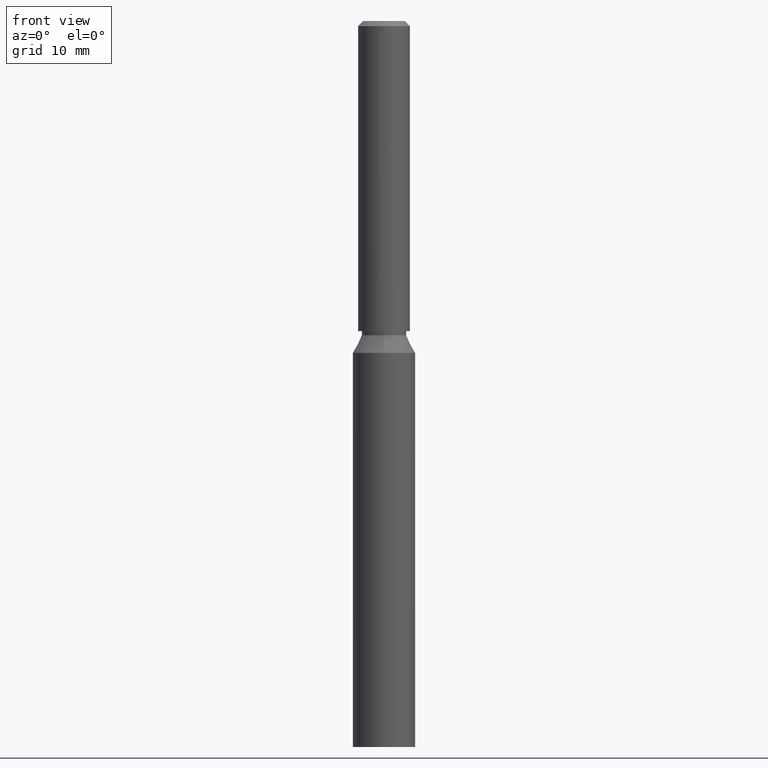
[diagram: clean part render]
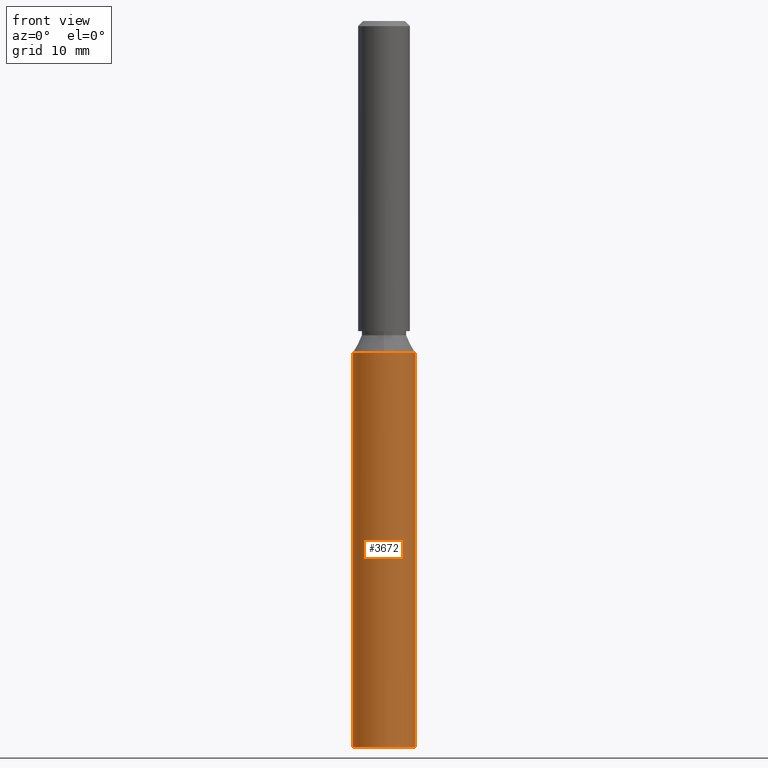
[diagram: same view with one face highlighted and labeled with its STEP entity id]
A machine part, front view. The second image highlights one B-rep face of the part: STEP entity #3672.
In plain terms, the highlighted cylindrical surface (edge-blend (fillet) strip) has radius 3 mm, axis along (-0, -0, -1).
Its self-contained STEP definition (entity closure, byte-faithful):
#433 = EDGE_CURVE ( 'NONE', #5774, #11327, #2563, .T. ) ;
#558 = DIRECTION ( 'NONE',  ( -0.0000000000000000000, -0.0000000000000000000, -1.000000000000000000 ) ) ;
#1216 = EDGE_CURVE ( 'NONE', #10972, #3734, #9667, .T. ) ;
#1454 = ORIENTED_EDGE ( 'NONE', *, *, #2805, .T. ) ;
#1540 = ORIENTED_EDGE ( 'NONE', *, *, #12414, .T. ) ;
#1727 = ORIENTED_EDGE ( 'NONE', *, *, #8704, .T. ) ;
#1941 = AXIS2_PLACEMENT_3D ( 'NONE', #9509, #2082, #6472 ) ;
#2082 = DIRECTION ( 'NONE',  ( -0.0000000000000000000, 1.967742040464204400E-018, -1.000000000000000000 ) ) ;
#2505 = DIRECTION ( 'NONE',  ( -0.0000000000000000000, 1.967742040464204400E-018, -1.000000000000000000 ) ) ;
#2563 = CIRCLE ( 'NONE', #1941, 3.000000000000005800 ) ;
#2805 = EDGE_CURVE ( 'NONE', #11327, #4088, #10504, .T. ) ;
#2946 = CIRCLE ( 'NONE', #8358, 3.000000000000000400 ) ;
#3513 = CIRCLE ( 'NONE', #7159, 3.000000000000005800 ) ;
#3672 = ADVANCED_FACE ( 'NONE', ( #6755 ), #13243, .T. ) ;
#3734 = VERTEX_POINT ( 'NONE', #11551 ) ;
#3858 = ORIENTED_EDGE ( 'NONE', *, *, #1216, .F. ) ;
#3957 = DIRECTION ( 'NONE',  ( -0.0000000000000000000, -0.0000000000000000000, -1.000000000000000000 ) ) ;
#4052 = DIRECTION ( 'NONE',  ( -1.000000000000000000, 0.0000000000000000000, 0.0000000000000000000 ) ) ;
#4088 = VERTEX_POINT ( 'NONE', #13517 ) ;
#4109 = CARTESIAN_POINT ( 'NONE',  ( 3.673940397442066300E-016, -3.000000000000005800, 38.00000000000000000 ) ) ;
#4763 = AXIS2_PLACEMENT_3D ( 'NONE', #7313, #3957, #4052 ) ;
#5379 = DIRECTION ( 'NONE',  ( 1.000000000000000000, 0.0000000000000000000, 0.0000000000000000000 ) ) ;
#5692 = CARTESIAN_POINT ( 'NONE',  ( -3.000000000000005800, 1.324076836766224600E-031, 38.00000000000000000 ) ) ;
#5774 = VERTEX_POINT ( 'NONE', #4109 ) ;
#6265 = CARTESIAN_POINT ( 'NONE',  ( 3.000000000000005800, 3.673940397442067800E-016, 38.00000000000000000 ) ) ;
#6472 = DIRECTION ( 'NONE',  ( 0.0000000000000000000, 1.000000000000000000, 0.0000000000000000000 ) ) ;
#6755 = FACE_OUTER_BOUND ( 'NONE', #8677, .T. ) ;
#7101 = CARTESIAN_POINT ( 'NONE',  ( 3.000000000000000400, 3.673940397442060400E-016, 40.00000000000000000 ) ) ;
#7130 = VECTOR ( 'NONE', #558, 1000.000000000000000 ) ;
#7159 = AXIS2_PLACEMENT_3D ( 'NONE', #7943, #2505, #8942 ) ;
#7165 = CARTESIAN_POINT ( 'NONE',  ( -3.000000000000000400, 0.0000000000000000000, 40.00000000000000000 ) ) ;
#7313 = CARTESIAN_POINT ( 'NONE',  ( 0.0000000000000000000, 0.0000000000000000000, 40.00000000000000000 ) ) ;
#7571 = CARTESIAN_POINT ( 'NONE',  ( 0.0000000000000000000, 0.0000000000000000000, 0.0000000000000000000 ) ) ;
#7943 = CARTESIAN_POINT ( 'NONE',  ( 0.0000000000000000000, -7.477419753763976000E-017, 38.00000000000000000 ) ) ;
#8256 = DIRECTION ( 'NONE',  ( -0.0000000000000000000, -0.0000000000000000000, -1.000000000000000000 ) ) ;
#8358 = AXIS2_PLACEMENT_3D ( 'NONE', #7571, #9646, #5379 ) ;
#8626 = VECTOR ( 'NONE', #8256, 1000.000000000000000 ) ;
#8677 = EDGE_LOOP ( 'NONE', ( #3858, #1727, #13288, #1454, #1540 ) ) ;
#8704 = EDGE_CURVE ( 'NONE', #10972, #5774, #3513, .T. ) ;
#8942 = DIRECTION ( 'NONE',  ( 0.0000000000000000000, 1.000000000000000000, 0.0000000000000000000 ) ) ;
#9509 = CARTESIAN_POINT ( 'NONE',  ( 0.0000000000000000000, -7.477419753763976000E-017, 38.00000000000000000 ) ) ;
#9646 = DIRECTION ( 'NONE',  ( 0.0000000000000000000, 0.0000000000000000000, 1.000000000000000000 ) ) ;
#9667 = LINE ( 'NONE', #7101, #7130 ) ;
#10504 = LINE ( 'NONE', #7165, #8626 ) ;
#10972 = VERTEX_POINT ( 'NONE', #6265 ) ;
#11327 = VERTEX_POINT ( 'NONE', #5692 ) ;
#11551 = CARTESIAN_POINT ( 'NONE',  ( 3.000000000000000400, 3.673940397442060400E-016, 0.0000000000000000000 ) ) ;
#12414 = EDGE_CURVE ( 'NONE', #4088, #3734, #2946, .T. ) ;
#13243 = CYLINDRICAL_SURFACE ( 'NONE', #4763, 3.000000000000000400 ) ;
#13288 = ORIENTED_EDGE ( 'NONE', *, *, #433, .T. ) ;
#13517 = CARTESIAN_POINT ( 'NONE',  ( -3.000000000000000400, 0.0000000000000000000, 0.0000000000000000000 ) ) ;